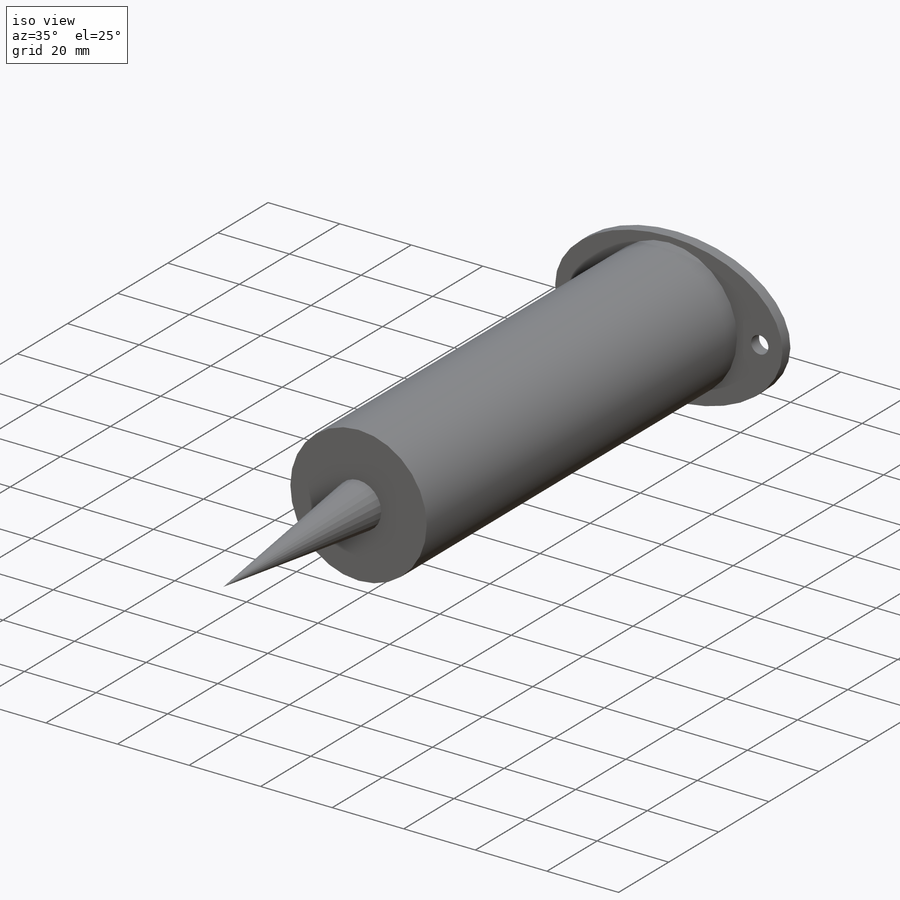
[diagram: iso view]
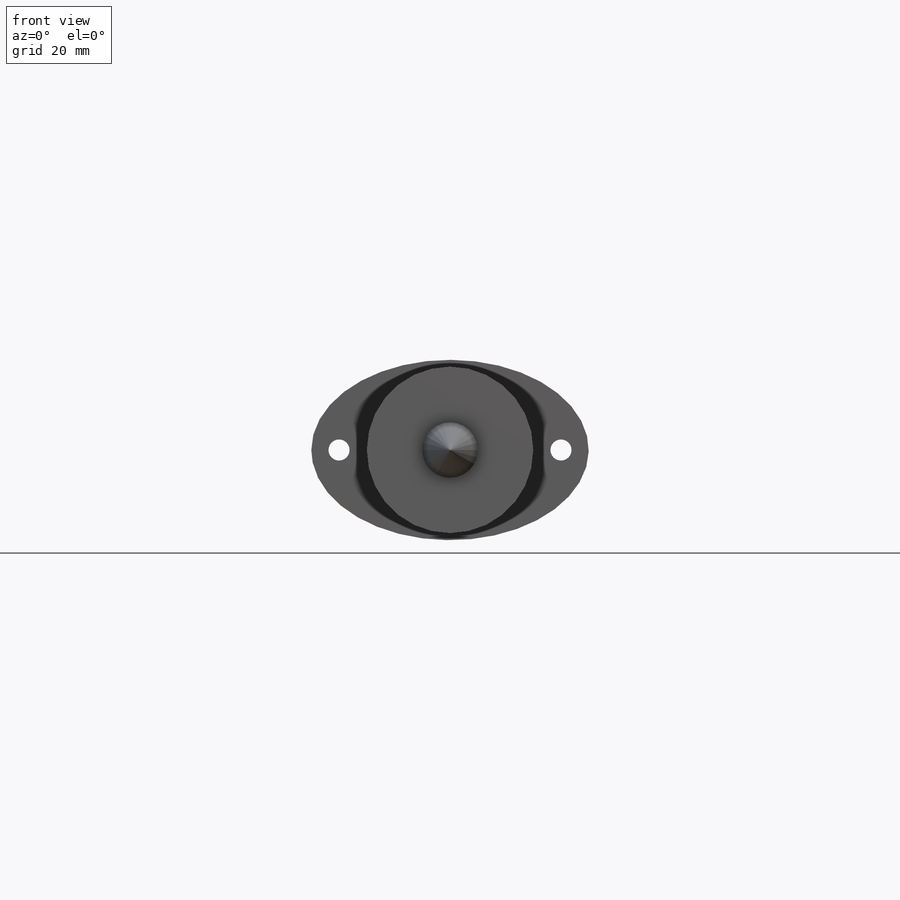
[diagram: front view]
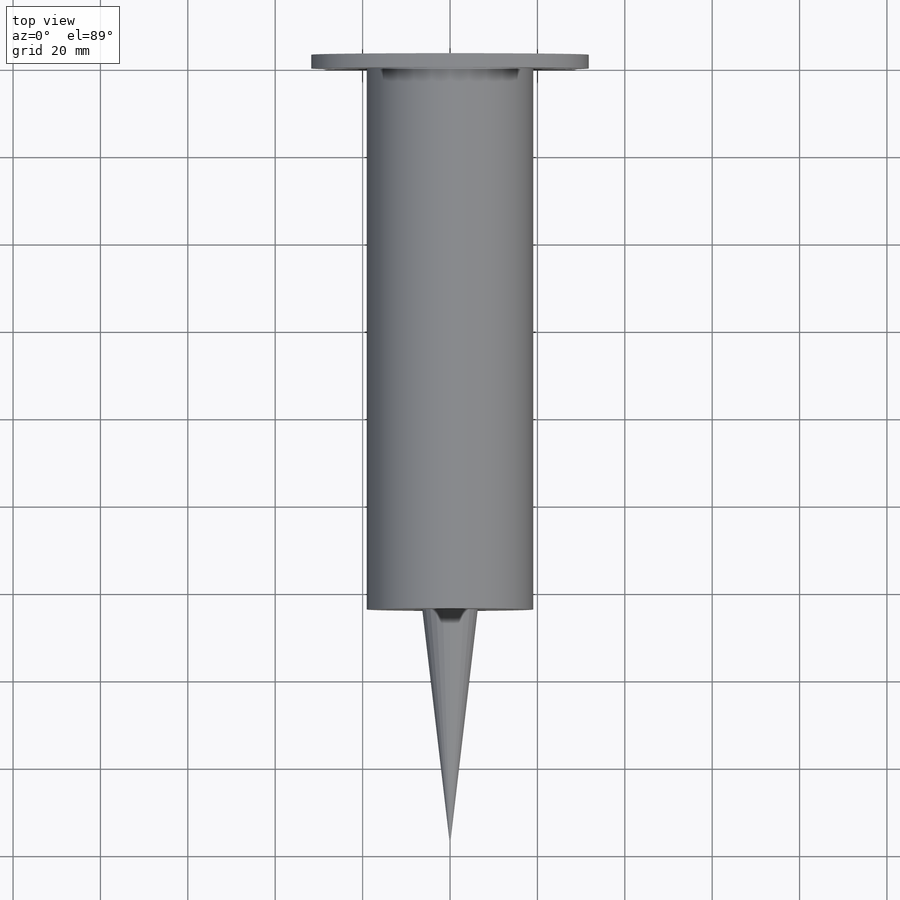
[diagram: top view]
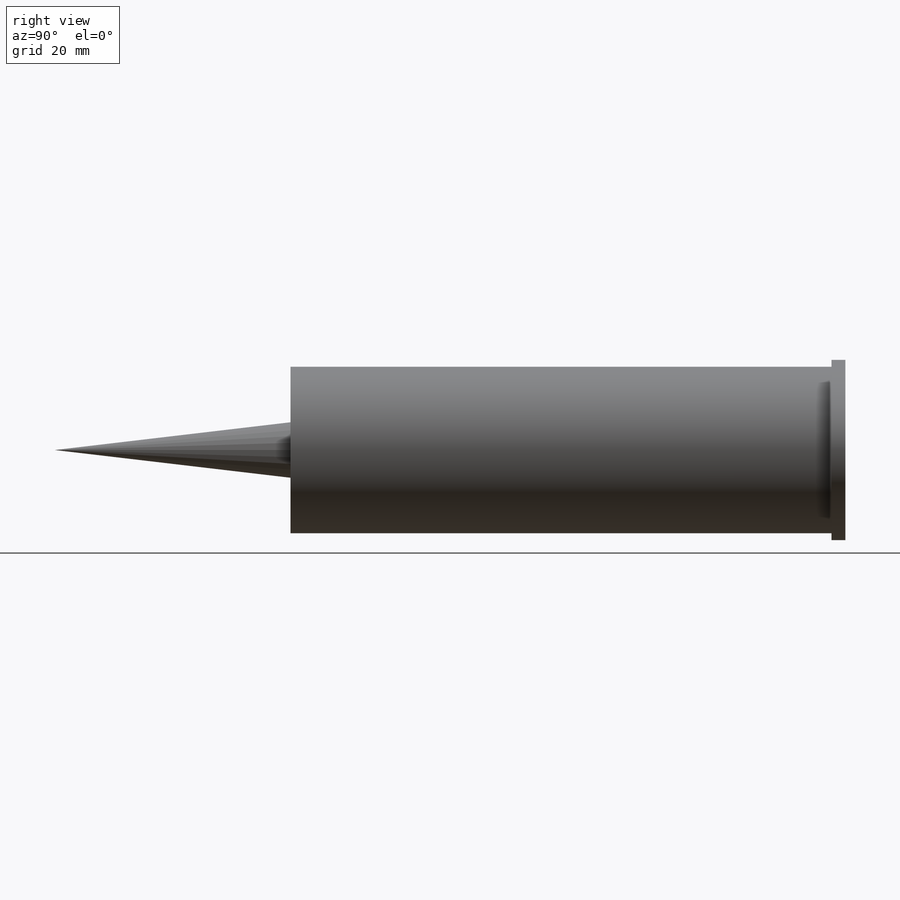
[diagram: right view]
SOLIDWORKS PART (.sldprt)
format: sldprt  version: not decoded by parser v0  size: 175,616 bytes
history: native  units: mm
features: sketch x4, extrude x3, material x1, revolve x1 (+13 scaffold rows collapsed)
feature tree (22):
  scaffold x13  (default folders/planes/origin — collapsed)
  material  "Material <not specified>"
  sketch  "Sketch1"  dims[D1=34.925mm D2=38.1mm]
  extrude  "Boss-Extrude1"  Depth=123.825mm
  sketch  "Sketch2"  dims[D3=4.826mm D1=20.6375mm D2=63.5mm D4=25.4mm D5=25.4mm]
  extrude  "Boss-Extrude2"  Depth=3.175mm
  sketch  "Sketch3"
  extrude  "Boss-Extrude3"  Depth=4.953mm
  sketch  "Sketch4"  dims[D1=53.975mm D2=6.35mm]
  revolve  "Revolve1"  Angle=360deg
decode coverage: 7 of 8 modeling features carry decoded parameters
note: suppression state not decoded; provenance and decode notes live in map.json
